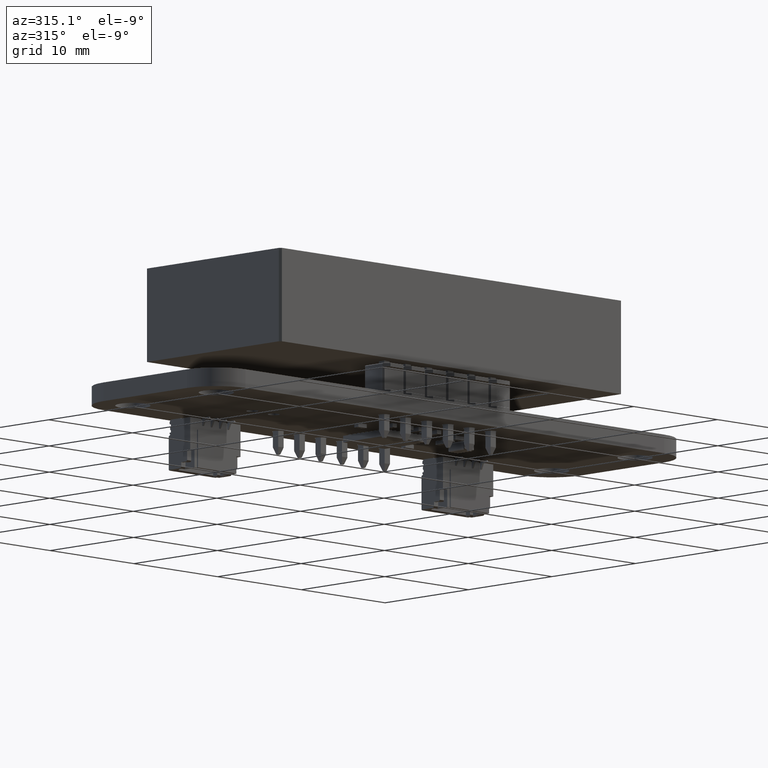
[diagram: clean part render]
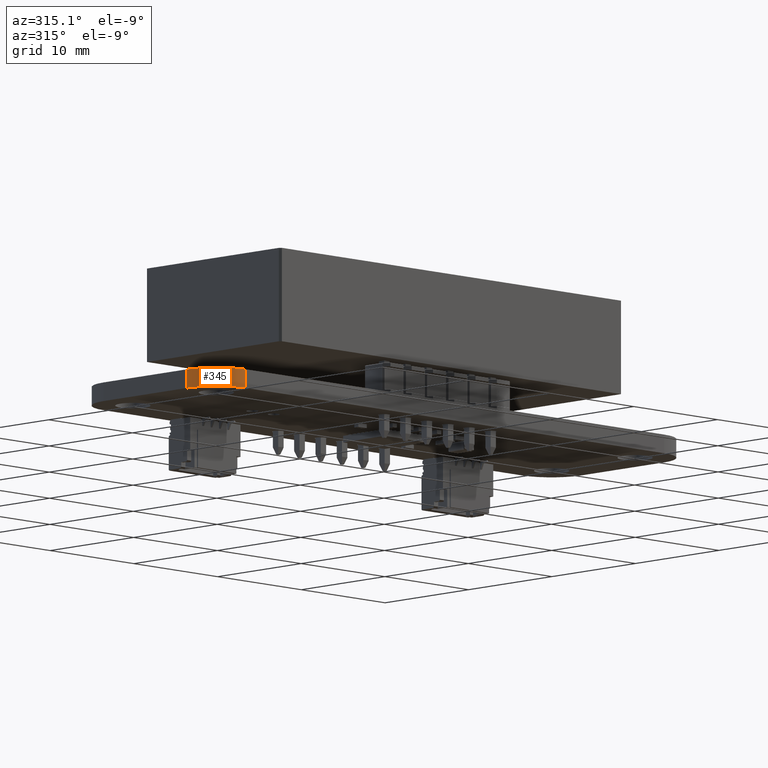
[diagram: same view with one face highlighted and labeled with its STEP entity id]
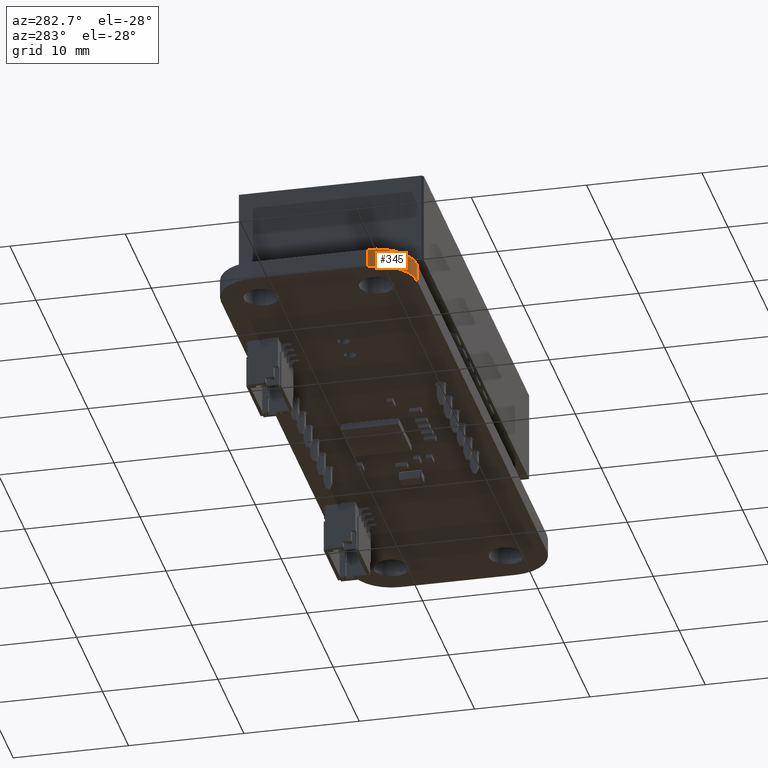
[diagram: same view with one face highlighted and labeled with its STEP entity id]
A machine part, auxiliary view. The second image highlights one B-rep face of the part: STEP entity #345.
A second angle (auxiliary view) of the same face is appended — the face is thin or edge-on in the first view.
In plain terms, the highlighted cylindrical surface (partial cylindrical patch) has radius 3.4996 mm, axis along (0, 0, -1).
Its self-contained STEP definition (entity closure, byte-faithful):
#117 = EDGE_CURVE('',#118,#120,#122,.T.);
#118 = VERTEX_POINT('',#119);
#119 = CARTESIAN_POINT('',(0.,3.5,0.));
#120 = VERTEX_POINT('',#121);
#121 = CARTESIAN_POINT('',(0.,3.5,1.59540194));
#122 = LINE('',#123,#124);
#123 = CARTESIAN_POINT('',(0.,3.5,0.));
#124 = VECTOR('',#125,1.);
#125 = DIRECTION('',(0.,0.,1.));
#320 = VERTEX_POINT('',#321);
#321 = CARTESIAN_POINT('',(3.5,0.,1.59540194));
#327 = EDGE_CURVE('',#328,#320,#330,.T.);
#328 = VERTEX_POINT('',#329);
#329 = CARTESIAN_POINT('',(3.5,0.,0.));
#330 = LINE('',#331,#332);
#331 = CARTESIAN_POINT('',(3.5,0.,0.));
#332 = VECTOR('',#333,1.);
#333 = DIRECTION('',(0.,0.,1.));
#345 = ADVANCED_FACE('',(#346),#364,.T.);
#346 = FACE_BOUND('',#347,.T.);
#347 = EDGE_LOOP('',(#348,#349,#356,#357));
#348 = ORIENTED_EDGE('',*,*,#327,.T.);
#349 = ORIENTED_EDGE('',*,*,#350,.T.);
#350 = EDGE_CURVE('',#320,#120,#351,.T.);
#351 = CIRCLE('',#352,3.499568992062);
#352 = AXIS2_PLACEMENT_3D('',#353,#354,#355);
#353 = CARTESIAN_POINT('',(3.499568965517,3.499568965517,1.59540194));
#354 = DIRECTION('',(0.,0.,-1.));
#355 = DIRECTION('',(1.231678768834E-04,-0.999999992415,0.));
#356 = ORIENTED_EDGE('',*,*,#117,.F.);
#357 = ORIENTED_EDGE('',*,*,#358,.F.);
#358 = EDGE_CURVE('',#328,#118,#359,.T.);
#359 = CIRCLE('',#360,3.499568992062);
#360 = AXIS2_PLACEMENT_3D('',#361,#362,#363);
#361 = CARTESIAN_POINT('',(3.499568965517,3.499568965517,0.));
#362 = DIRECTION('',(0.,0.,-1.));
#363 = DIRECTION('',(1.231678768834E-04,-0.999999992415,0.));
#364 = CYLINDRICAL_SURFACE('',#365,3.499568992062);
#365 = AXIS2_PLACEMENT_3D('',#366,#367,#368);
#366 = CARTESIAN_POINT('',(3.499568965517,3.499568965517,0.));
#367 = DIRECTION('',(0.,0.,-1.));
#368 = DIRECTION('',(1.231678768834E-04,-0.999999992415,0.));